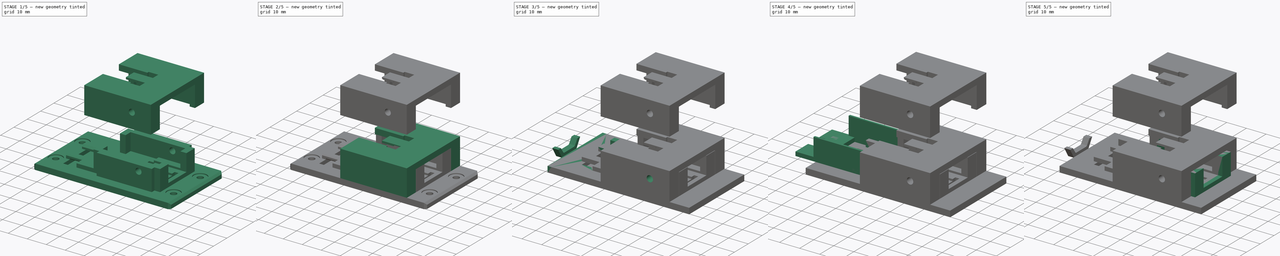
[diagram: build sequence overview — one tinted view per stage of 5, left to right]
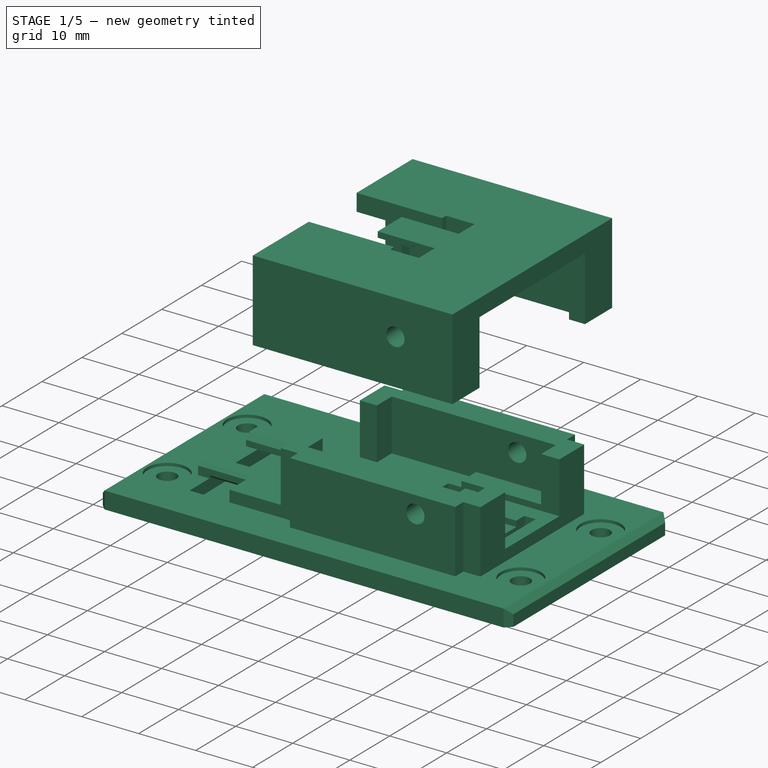
[diagram: stage 1 of 5 — iso view after this stage's code; geometry added in this stage tinted green]
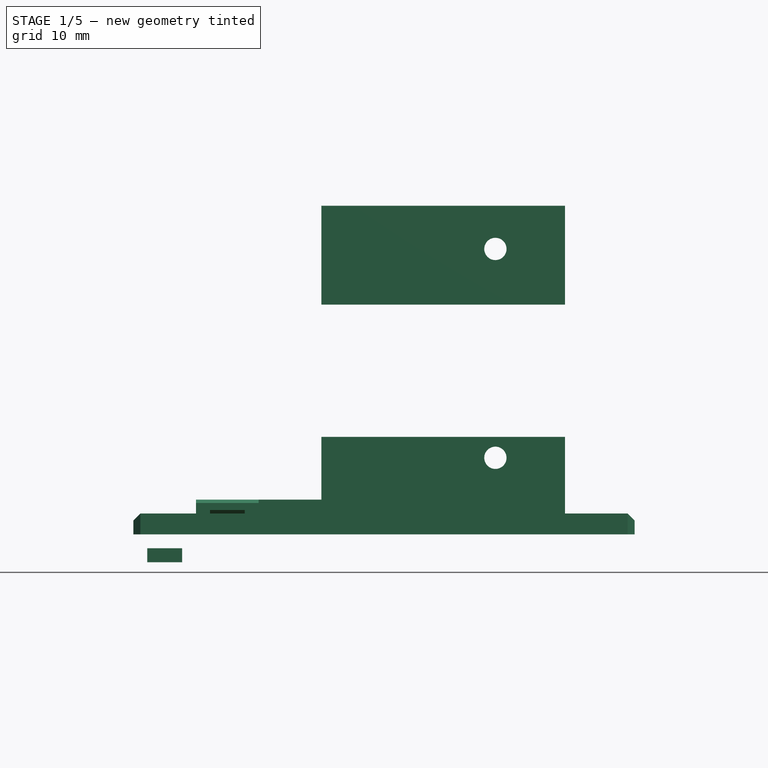
[diagram: stage 1 of 5 — front view after this stage's code; geometry added in this stage tinted green]
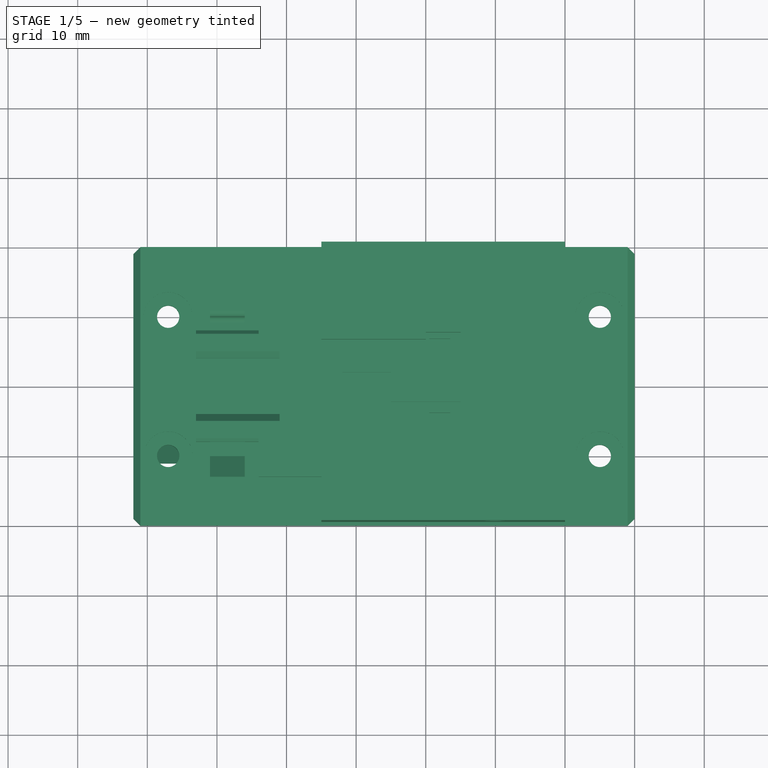
[diagram: stage 1 of 5 — top view after this stage's code; geometry added in this stage tinted green]
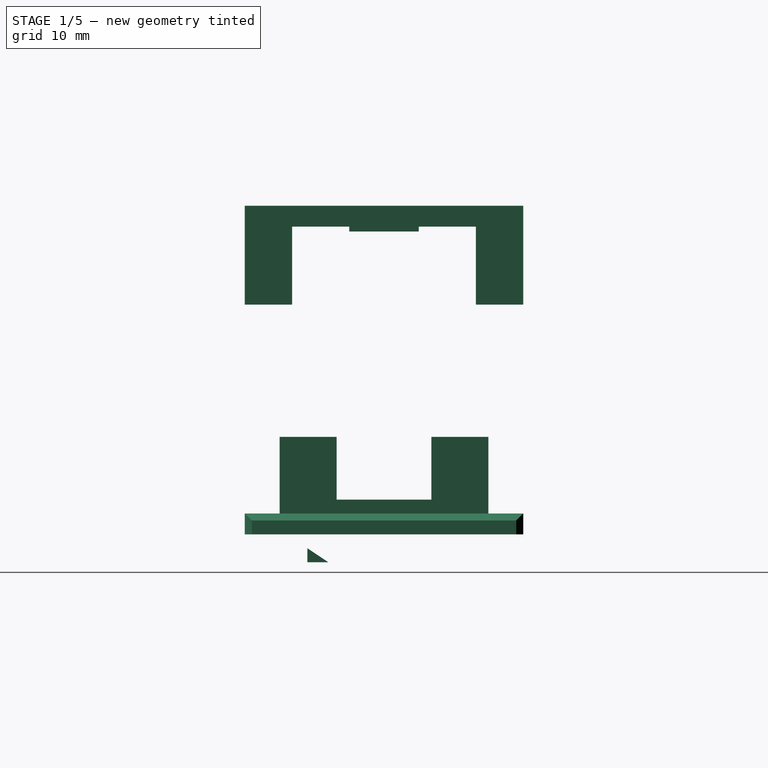
[diagram: stage 1 of 5 — right view after this stage's code; geometry added in this stage tinted green]
FCSTD DOCUMENT  (FreeCAD 0.18R14555 (Git shallow))
Label: dc-jack
License: All rights reserved
LicenseURL: http://en.wikipedia.org/wiki/All_rights_reserved
objects: Part::Box×43, Part::MultiFuse×12, Part::Cut×11, Part::Feature×10, Part::Chamfer×8, Part::Cylinder×6, Part::Fillet×4, Sketcher::SketchObject×1, PartDesign::Pad×1, PartDesign::Body×1
note: 98 computed .brp shape members not serialized (recipe doc carries the construction recipe); baked Part::Feature solids carry a one-line shape summary decoded from their .brp

FEATURE [Part::Cylinder] Cylinder004
  Angle = 360
  AttacherType = Attacher::AttachEngine3D
  Height = 40
  Placement = pos=(50,20,8) rot=(1,0,0;1.5708rad)
  Radius = 1.6
FEATURE [Part::Feature] Fusion004003001  label="Fusion004004"
  shape: bbox 72 x 40 x 14 mm, 74 faces (baked)
FEATURE [Part::MultiFuse] Fusion004003002
  Shapes = -> [Fusion004002,Fusion004001]
FEATURE [Part::Cut] Cut004
  Base = -> Fusion004003001
  Tool = -> Fusion004003002
FEATURE [Part::Chamfer] Chamfer
  Base = -> Cut004
  Edges = 2 edges r=1: [Edge77,Edge86]
FEATURE [Part::Chamfer] Chamfer001
  Base = -> Chamfer
  Edges = 2 edges r=0.5: [Edge50,Edge94]
FEATURE [Part::Chamfer] Chamfer002
  Base = -> Chamfer001
  Edges = 2 edges r=0.5: [Edge6,Edge74]
FEATURE [Part::Cut] Cut005
  Base = -> Chamfer002
  Tool = -> Cylinder004
FEATURE [Part::Feature] Cut008001  label="Cut009"
  shape: bbox 35 x 40 x 14.2 mm, 34 faces (baked)
FEATURE [Part::Box] Box041  label="Cube041"
  AttacherType = Attacher::AttachEngine3D
  Height = 2.5
  Length = 6
  Placement = pos=(45,-5,10.5) rot=(0,0,1;0rad)
  Width = 10
FEATURE [Part::MultiFuse] Fusion004003007
  Placement = pos=(0,0,30) rot=(0,0,1;0rad)
  Shapes = -> [Box041,Cut008001]
FEATURE [Part::Feature] Chamfer003001  label="Chamfer004"
  shape: bbox 35 x 40 x 14.2 mm, 40 faces (baked)
FEATURE [Part::Chamfer] Chamfer003002
  Base = -> Chamfer003001
  Edges = 11 edges r=1: [Edge12,Edge13,Edge14,Edge15,Edge16,Edge17,Edge18,Edge69,Edge71,Edge77,Edge79]
FEATURE [Part::Chamfer] Chamfer003003
  Base = -> Cut005
  Edges = 4 edges r=1: [Edge123,Edge124,Edge127,Edge128]
FEATURE [Part::Chamfer] Chamfer003004
  Base = -> Chamfer003003
  Edges = 1 edges r=1: [Edge8]
FEATURE [Part::Chamfer] Chamfer003005
  Base = -> Chamfer003004
  Edges = 1 edges r=1: [Edge6]
FEATURE [Sketcher::SketchObject] Sketch
  MapMode = 5
  Placement = pos=(0,0,0) rot=(0.57735,0.57735,0.57735;2.0944rad)
  Support = -> [YZ_Plane]
  sketch-geometry (3):
    g0: LineSegment StartX=-11 StartY=-5 StartZ=0 EndX=-8 EndY=-7 EndZ=0
    g1: LineSegment StartX=-8 StartY=-7 StartZ=0 EndX=-11 EndY=-7 EndZ=0
    g2: LineSegment StartX=-11 StartY=-7 StartZ=0 EndX=-11 EndY=-5 EndZ=0
  constraints (5):
    c: Coincident(g0,g1)
    c: Horizontal(g1)
    c: Coincident(g1,g2)
    c: PointOnObject(g2,g0)
    c: Vertical(g2)
FEATURE [PartDesign::Pad] Pad
  Length = 5
  Length2 = 100
  Placement = pos=(0,0,0) rot=(0.57735,0.57735,0.57735;2.0944rad)
  Profile = -> Sketch
  Type = 0
FEATURE [PartDesign::Body] Body
  Group = -> [Sketch,Pad]
  Origin = -> Origin
  Tip = -> Pad
FEATURE [Part::Feature] Body002
  Placement = pos=(9,0,5) rot=(0,0,1;0rad)
  shape: bbox 5 x 3 x 2 mm, 5 faces (baked)
FEATURE [Part::Box] Box042  label="Cube042"
  AttacherType = Attacher::AttachEngine3D
  Height = 2
  Length = 5
  Placement = pos=(9,-11,-2) rot=(0,0,1;0rad)
  Width = 6
FEATURE [Part::Cut] Cut008002
  Base = -> Box042
  Placement = pos=(0,-2,0) rot=(0,0,1;0rad)
  Tool = -> Body002
FEATURE [Part::Cut] Cut008003
  Base = -> Chamfer003005
  Tool = -> Cut008002
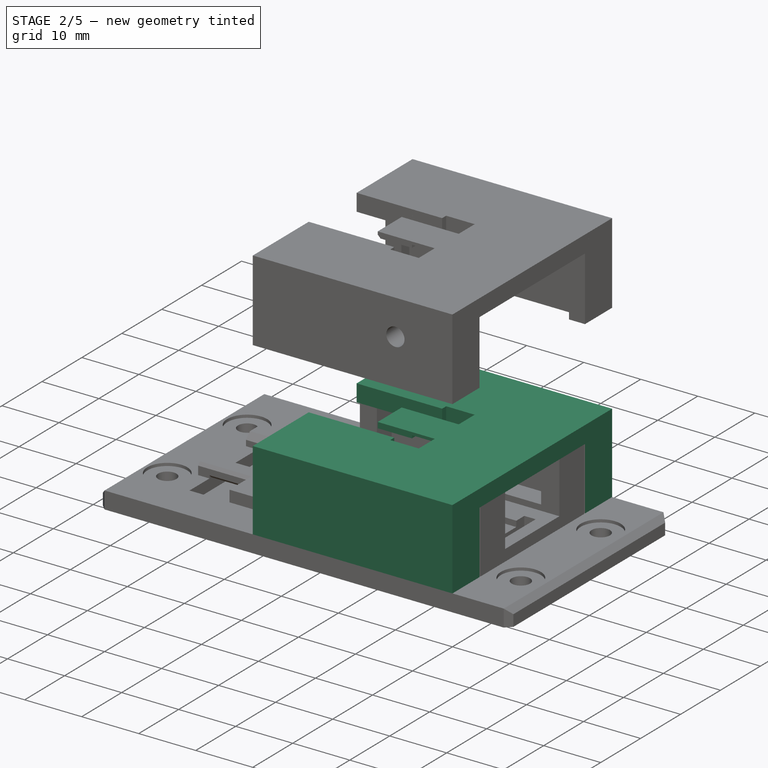
[diagram: stage 2 of 5 — iso view after this stage's code; geometry added in this stage tinted green]
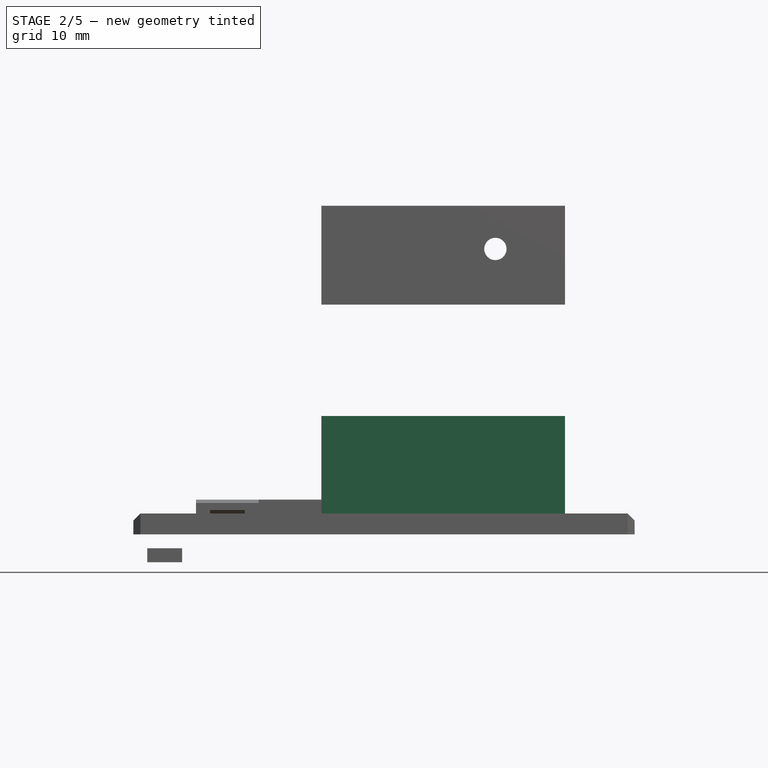
[diagram: stage 2 of 5 — front view after this stage's code; geometry added in this stage tinted green]
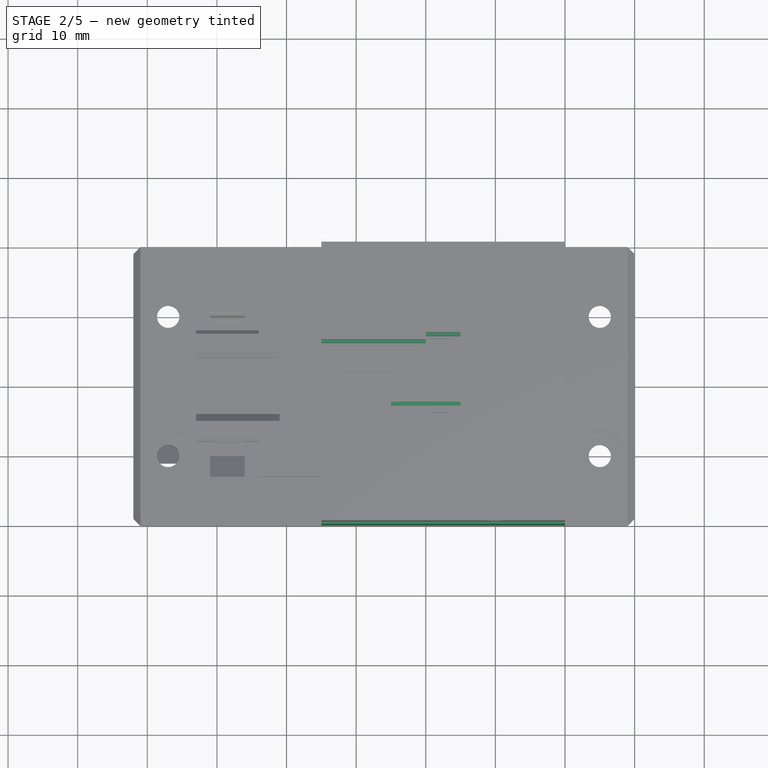
[diagram: stage 2 of 5 — top view after this stage's code; geometry added in this stage tinted green]
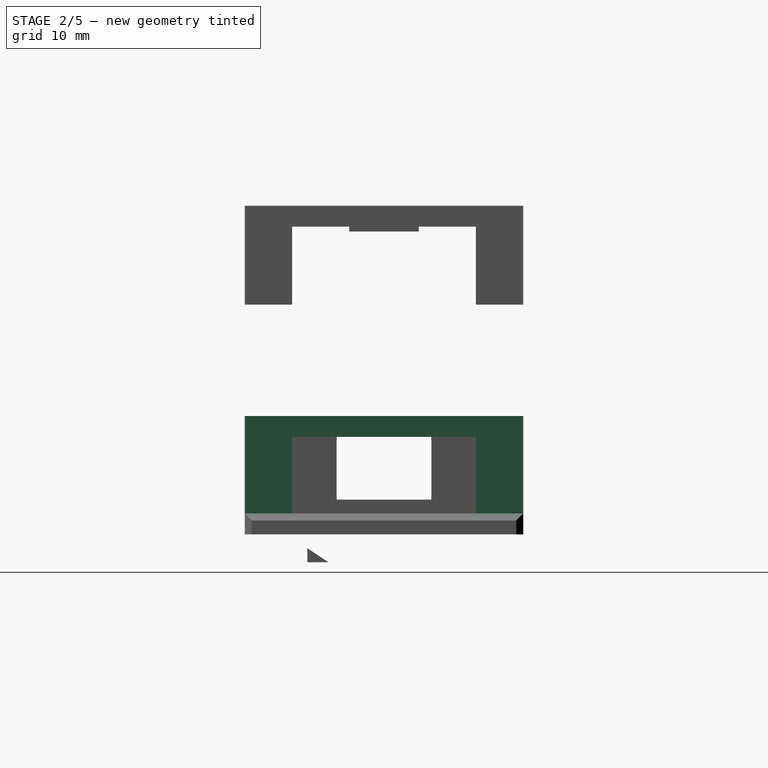
[diagram: stage 2 of 5 — right view after this stage's code; geometry added in this stage tinted green]
FEATURE [Part::Box] Box029  label="Cube029"
  AttacherType = Attacher::AttachEngine3D
  Height = 12
  Length = 2.8
  Placement = pos=(25,-20,0) rot=(0,0,1;0rad)
  Width = 6.8
FEATURE [Part::Box] Box030  label="Cube030"
  AttacherType = Attacher::AttachEngine3D
  Height = 12
  Length = 2.8
  Placement = pos=(25,13.2,0) rot=(0,0,1;0rad)
  Width = 6.8
FEATURE [Part::Box] Box031  label="Cube031"
  AttacherType = Attacher::AttachEngine3D
  Height = 12
  Length = 2.8
  Placement = pos=(57.2,-20,0) rot=(0,0,1;0rad)
  Width = 6.8
FEATURE [Part::Box] Box032  label="Cube032"
  AttacherType = Attacher::AttachEngine3D
  Height = 12
  Length = 2.8
  Placement = pos=(57.2,13.2,0) rot=(0,0,1;0rad)
  Width = 6.8
FEATURE [Part::Box] Box033  label="Cube033"
  AttacherType = Attacher::AttachEngine3D
  Height = 12
  Length = 31
  Placement = pos=(27,-20,0) rot=(0,0,1;0rad)
  Width = 4.8
FEATURE [Part::Box] Box034  label="Cube034"
  AttacherType = Attacher::AttachEngine3D
  Height = 12
  Length = 31
  Placement = pos=(27,15.2,0) rot=(0,0,1;0rad)
  Width = 4.8
FEATURE [Part::Box] Box035  label="Cube035"
  AttacherType = Attacher::AttachEngine3D
  Height = 3
  Length = 15
  Placement = pos=(45,-20,11) rot=(0,0,1;0rad)
  Width = 40
FEATURE [Part::Box] Box036  label="Cube036"
  AttacherType = Attacher::AttachEngine3D
  Height = 3
  Length = 20
  Placement = pos=(25,-20,11) rot=(0,0,1;0rad)
  Width = 14
FEATURE [Part::Box] Box037  label="Cube037"
  AttacherType = Attacher::AttachEngine3D
  Height = 3
  Length = 20
  Placement = pos=(25,6,11) rot=(0,0,1;0rad)
  Width = 14
FEATURE [Part::Box] Box038  label="Cube038"
  AttacherType = Attacher::AttachEngine3D
  Height = 3
  Length = 5
  Placement = pos=(40,-7,11) rot=(0,0,1;0rad)
  Width = 14
FEATURE [Part::MultiFuse] Fusion004003003
  Shapes = -> [Box036,Box035,Box037]
FEATURE [Part::Cut] Cut006
  Base = -> Fusion004003003
  Tool = -> Box038
FEATURE [Part::Box] Box039  label="Cube039"
  AttacherType = Attacher::AttachEngine3D
  Height = 1
  Length = 10
  Placement = pos=(35,-3,13) rot=(0,0,1;0rad)
  Width = 6
FEATURE [Part::Box] Box040  label="Cube040"
  AttacherType = Attacher::AttachEngine3D
  Height = 0.5
  Length = 4
  Placement = pos=(41,-3,13) rot=(0,0,1;0rad)
  Width = 6
FEATURE [Part::Cut] Cut007
  Base = -> Box039
  Tool = -> Box040
FEATURE [Part::MultiFuse] Fusion004003005
  Shapes = -> [Box029,Box033,Box032,Box031,Box034,Box030]
FEATURE [Part::Chamfer] Chamfer003
  Base = -> Fusion004003007
  Edges = 2 edges r=0.5: [Edge41,Edge111]
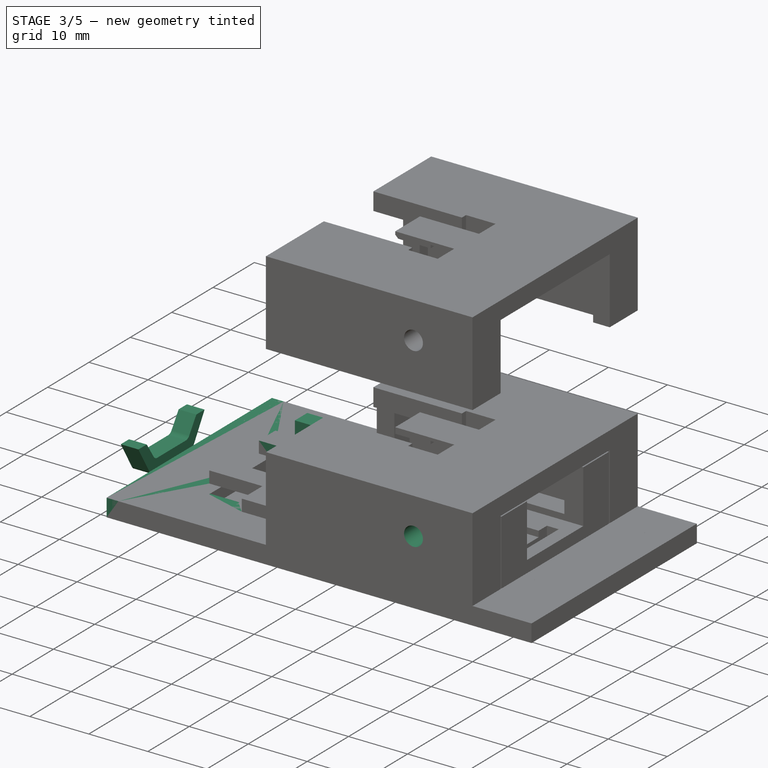
[diagram: stage 3 of 5 — iso view after this stage's code; geometry added in this stage tinted green]
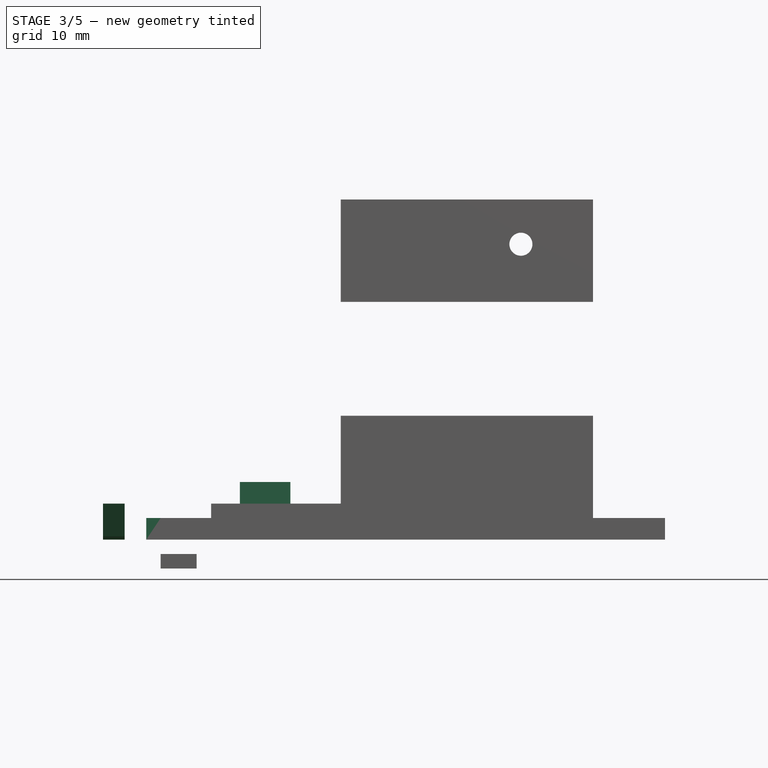
[diagram: stage 3 of 5 — front view after this stage's code; geometry added in this stage tinted green]
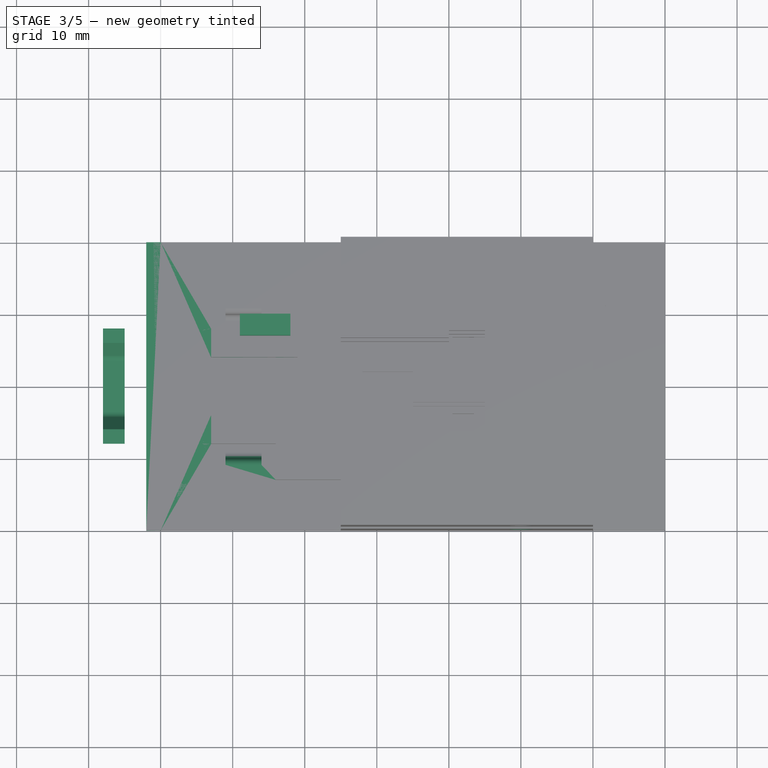
[diagram: stage 3 of 5 — top view after this stage's code; geometry added in this stage tinted green]
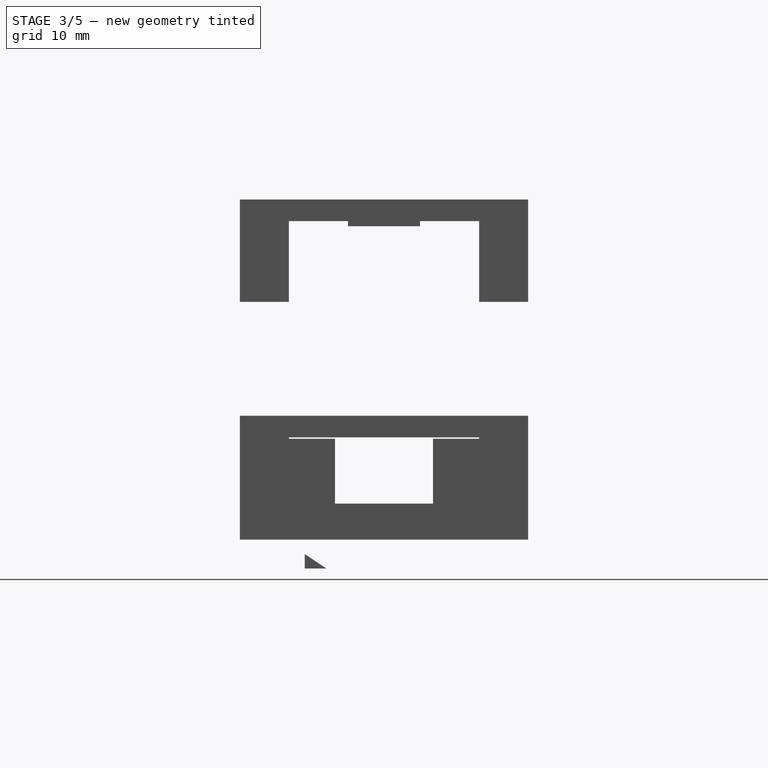
[diagram: stage 3 of 5 — right view after this stage's code; geometry added in this stage tinted green]
FEATURE [Part::Box] Box  label="Cube"
  AttacherType = Attacher::AttachEngine3D
  Height = 3
  Length = 70
  Placement = pos=(0,-20,-3) rot=(0,0,1;0rad)
  Width = 40
FEATURE [Part::Feature] Fusion004001  label="screw-hole-copy"
  Placement = pos=(65,0,0) rot=(0,0,1;0rad)
  shape: bbox 7 x 27 x 3 mm, 12 faces, 2 solids (baked)
FEATURE [Part::Box] Box021  label="Cube021"
  AttacherType = Attacher::AttachEngine3D
  Height = 5
  Length = 7
  Placement = pos=(11,7,0) rot=(0,0,1;0rad)
  Width = 3
FEATURE [Part::Box] Box022  label="Cube022"
  AttacherType = Attacher::AttachEngine3D
  Height = 2
  Length = 3
  Placement = pos=(13,7,0) rot=(0,0,1;0rad)
  Width = 3
FEATURE [Part::Feature] Fusion001001  label="bottom001"
  Placement = pos=(-2,0,0) rot=(0,0,1;0rad)
  shape: bbox 44 x 26 x 11 mm, 42 faces (baked)
FEATURE [Part::Feature] Fillet001001  label="Fillet002"
  Placement = pos=(-1,0,0) rot=(0,0,1;0rad)
  shape: bbox 7 x 3 x 5 mm, 12 faces (baked)
FEATURE [Part::Feature] Fillet001002  label="Fillet003"
  Placement = pos=(26,-1.2e-14,0) rot=(0,0,1;3.14159rad)
  shape: bbox 7 x 3 x 5 mm, 12 faces (baked)
FEATURE [Part::Box] Box023  label="Cube023"
  AttacherType = Attacher::AttachEngine3D
  Height = 11
  Length = 29
  Placement = pos=(28,-15,0) rot=(0,0,1;0rad)
  Width = 2
FEATURE [Part::Box] Box024  label="Cube024"
  AttacherType = Attacher::AttachEngine3D
  Height = 11
  Length = 29
  Placement = pos=(28,13,0) rot=(0,0,1;0rad)
  Width = 2
FEATURE [Part::Feature] Body001
  Placement = pos=(-8,0,0) rot=(0,0,1;0rad)
  shape: bbox 3 x 16 x 5 mm, 10 faces (baked)
FEATURE [Part::Fillet] Fillet001003
  Base = -> Body001
  Edges = 4 edges r=1: [Edge2,Edge5,Edge14,Edge17]
FEATURE [Part::Box] Box025  label="Cube025"
  AttacherType = Attacher::AttachEngine3D
  Height = 2
  Length = 9
  Placement = pos=(7,4,0) rot=(0,0,1;0rad)
  Width = 4
FEATURE [Part::Box] Box026  label="Cube026"
  AttacherType = Attacher::AttachEngine3D
  Height = 2
  Length = 9
  Placement = pos=(7,-8,0) rot=(0,0,1;0rad)
  Width = 4
FEATURE [Part::Box] Box027  label="Cube027"
  AttacherType = Attacher::AttachEngine3D
  Height = 2
  Length = 5
  Placement = pos=(9,-10,-2) rot=(0,0,1;0rad)
  Width = 20
FEATURE [Part::Cut] Cut003
  Base = -> Box
  Tool = -> Box027
FEATURE [Part::Fillet] Fillet001004
  Base = -> Cut003
  Edges = 4 edges r=0.9: [Edge11,Edge13,Edge20,Edge24]
FEATURE [Part::Feature] Fusion004002  label="screw-hole-copy001"
  Placement = pos=(3,0,0) rot=(0,0,1;0rad)
  shape: bbox 7 x 27 x 3 mm, 12 faces, 2 solids (baked)
FEATURE [Part::Box] Box028  label="Cube028"
  AttacherType = Attacher::AttachEngine3D
  Height = 3
  Length = 2
  Placement = pos=(-2,-20,-3) rot=(0,0,1;0rad)
  Width = 40
FEATURE [Part::MultiFuse] Fusion004003
  Shapes = -> [Box023,Box024,Box025,Box026,Fillet001004,Box028,Fusion001001]
FEATURE [Part::Cylinder] Cylinder005
  Angle = 360
  AttacherType = Attacher::AttachEngine3D
  Height = 40
  Placement = pos=(50,20,8) rot=(1,0,0;1.5708rad)
  Radius = 1.6
FEATURE [Part::MultiFuse] Fusion004003004
  Placement = pos=(0,0,0.2) rot=(0,0,1;0rad)
  Shapes = -> [Cut006,Cut007]
FEATURE [Part::MultiFuse] Fusion004003006
  Shapes = -> [Fusion004003004,Fusion004003005]
FEATURE [Part::Cut] Cut008
  Base = -> Fusion004003006
  Tool = -> Cylinder005
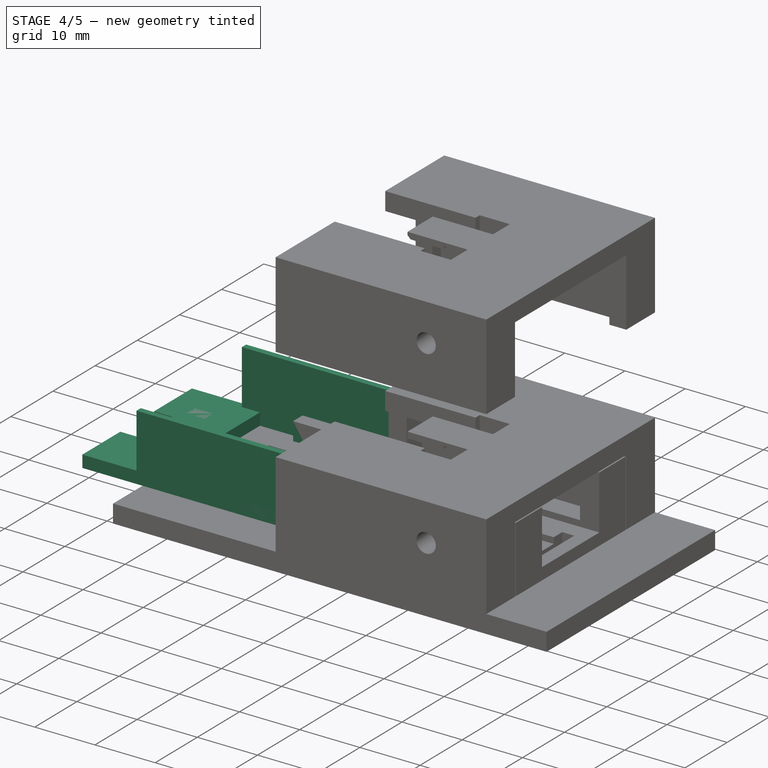
[diagram: stage 4 of 5 — iso view after this stage's code; geometry added in this stage tinted green]
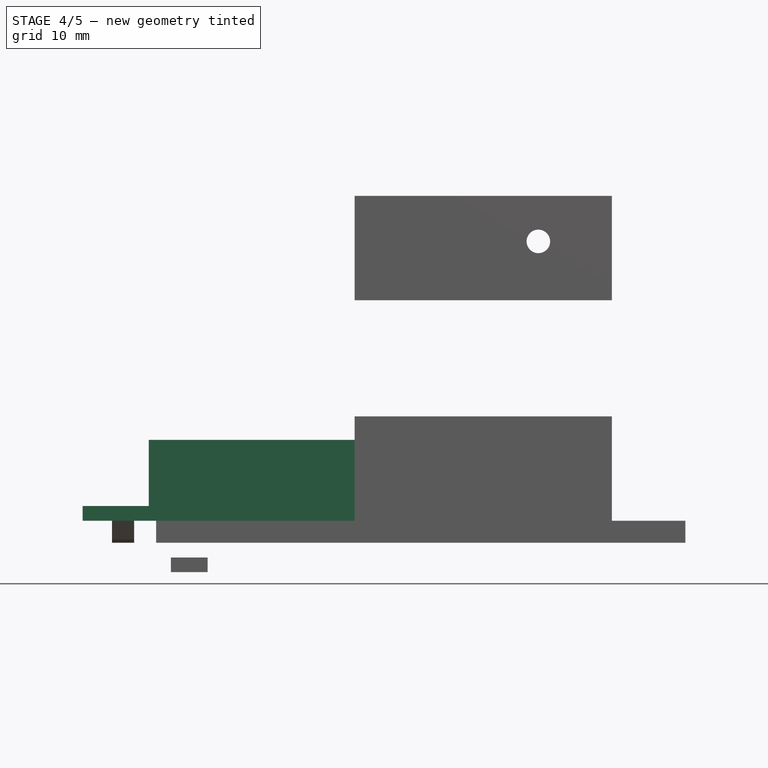
[diagram: stage 4 of 5 — front view after this stage's code; geometry added in this stage tinted green]
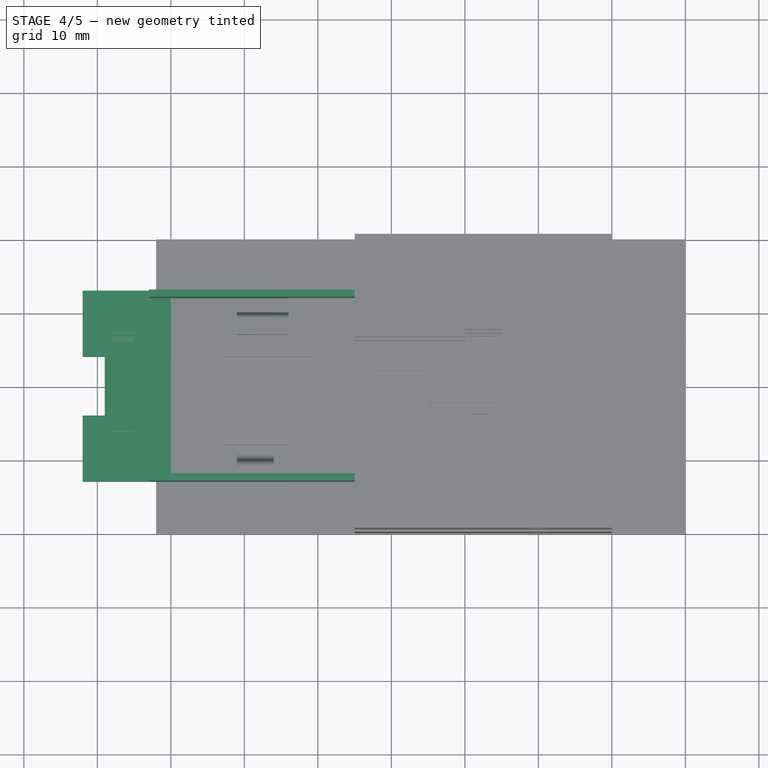
[diagram: stage 4 of 5 — top view after this stage's code; geometry added in this stage tinted green]
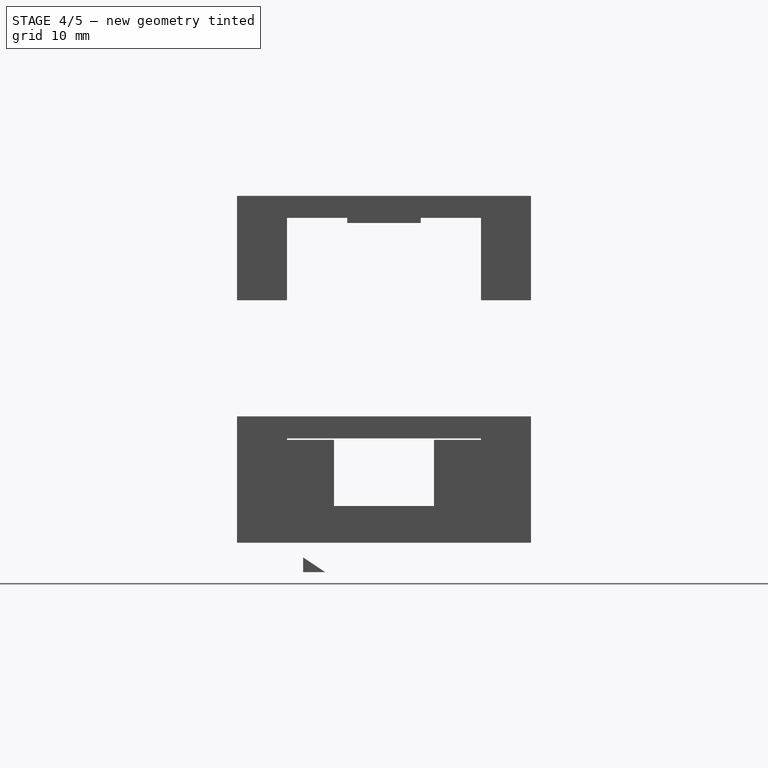
[diagram: stage 4 of 5 — right view after this stage's code; geometry added in this stage tinted green]
FEATURE [Part::Box] Box013  label="Cube013"
  AttacherType = Attacher::AttachEngine3D
  Height = 2
  Length = 12
  Placement = pos=(-12,-12,0) rot=(0,0,1;0rad)
  Width = 24
FEATURE [Part::Box] Box016  label="Cube016"
  AttacherType = Attacher::AttachEngine3D
  Height = 2
  Length = 3
  Placement = pos=(-12,-4,0) rot=(0,0,1;0rad)
  Width = 8
FEATURE [Part::Cut] Cut001
  Base = -> Box013
  Tool = -> Box016
FEATURE [Part::Box] Box017  label="Cube017"
  AttacherType = Attacher::AttachEngine3D
  Height = 11
  Length = 35
  Placement = pos=(-3,-13,0) rot=(0,0,1;0rad)
  Width = 1
FEATURE [Part::Box] Box018  label="Cube018"
  AttacherType = Attacher::AttachEngine3D
  Height = 11
  Length = 35
  Placement = pos=(-3,12,0) rot=(0,0,1;0rad)
  Width = 1
FEATURE [Part::Box] Box019  label="Cube019"
  AttacherType = Attacher::AttachEngine3D
  Height = 2
  Length = 9
  Placement = pos=(-12,12,0) rot=(0,0,1;0rad)
  Width = 1
FEATURE [Part::Box] Box020  label="Cube020"
  AttacherType = Attacher::AttachEngine3D
  Height = 2
  Length = 9
  Placement = pos=(-12,-13,0) rot=(0,0,1;0rad)
  Width = 1
FEATURE [Part::Cylinder] Cylinder
  Angle = 360
  AttacherType = Attacher::AttachEngine3D
  Height = 3
  Placement = pos=(0,10,-3) rot=(0,0,1;0rad)
  Radius = 1.6
FEATURE [Part::Cylinder] Cylinder001
  Angle = 360
  AttacherType = Attacher::AttachEngine3D
  Height = 3
  Placement = pos=(0,-10,-3) rot=(0,0,1;0rad)
  Radius = 1.6
FEATURE [Part::Cylinder] Cylinder002
  Angle = 360
  AttacherType = Attacher::AttachEngine3D
  Height = 0.5
  Placement = pos=(0,10,-0.5) rot=(0,0,1;0rad)
  Radius = 3.5
FEATURE [Part::Cylinder] Cylinder003
  Angle = 360
  AttacherType = Attacher::AttachEngine3D
  Height = 0.5
  Placement = pos=(0,-10,-0.5) rot=(0,0,1;0rad)
  Radius = 3.5
FEATURE [Part::MultiFuse] Fusion002
  Shapes = -> [Cylinder002,Cylinder]
FEATURE [Part::MultiFuse] Fusion003
  Shapes = -> [Cylinder003,Cylinder001]
FEATURE [Part::MultiFuse] Fusion004  label="screw-hole"
  Placement = pos=(5,0,0) rot=(0,0,1;0rad)
  Shapes = -> [Fusion003,Fusion002]
FEATURE [Part::Cut] Cut002
  Base = -> Box021
  Tool = -> Box022
FEATURE [Part::Fillet] Fillet
  Base = -> Cut002
  Edges = 1 edges r=1: [Edge16]
  Placement = pos=(-1,0,0) rot=(0,0,1;0rad)
FEATURE [Part::Fillet] Fillet001
  Base = -> Fillet
  Edges = 1 edges r=1: [Edge8]
  Placement = pos=(-1,0,0) rot=(0,0,1;0rad)
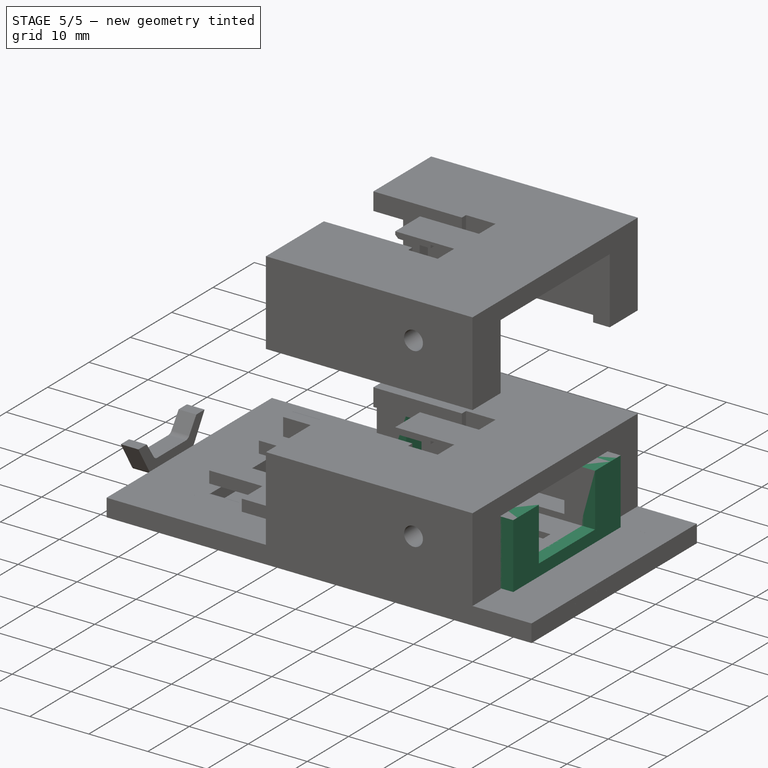
[diagram: stage 5 of 5 — iso view after this stage's code; geometry added in this stage tinted green]
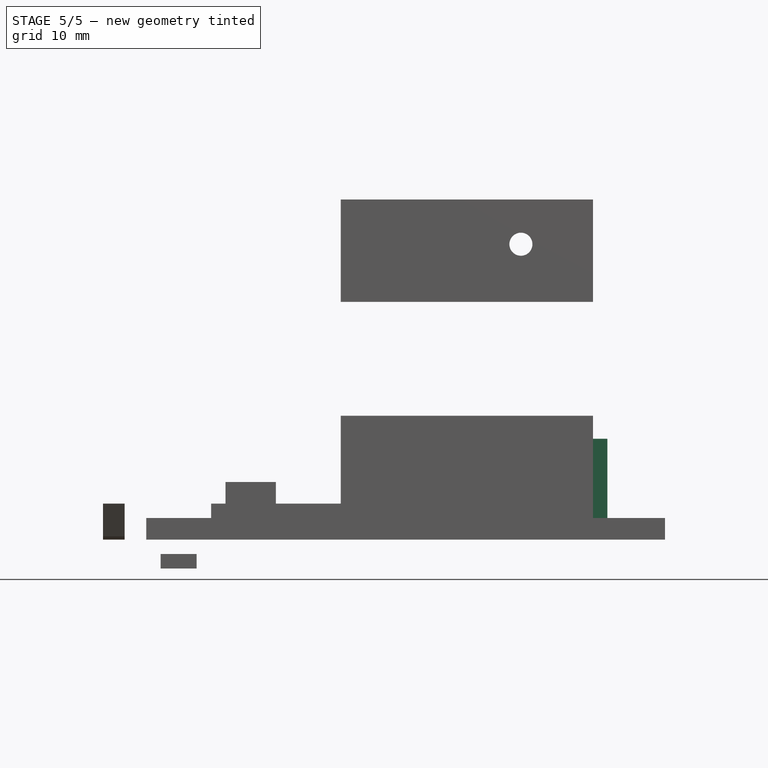
[diagram: stage 5 of 5 — front view after this stage's code; geometry added in this stage tinted green]
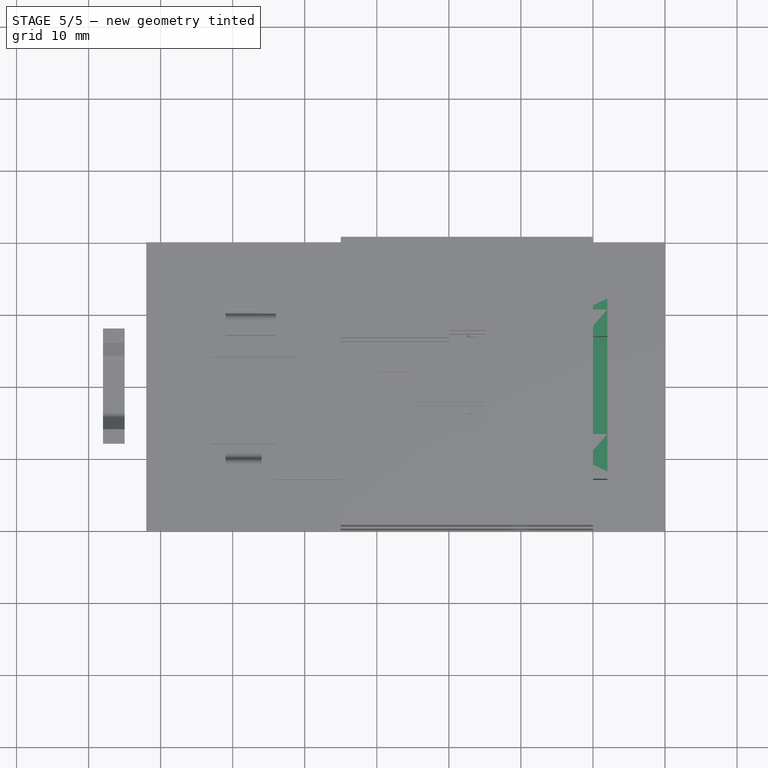
[diagram: stage 5 of 5 — top view after this stage's code; geometry added in this stage tinted green]
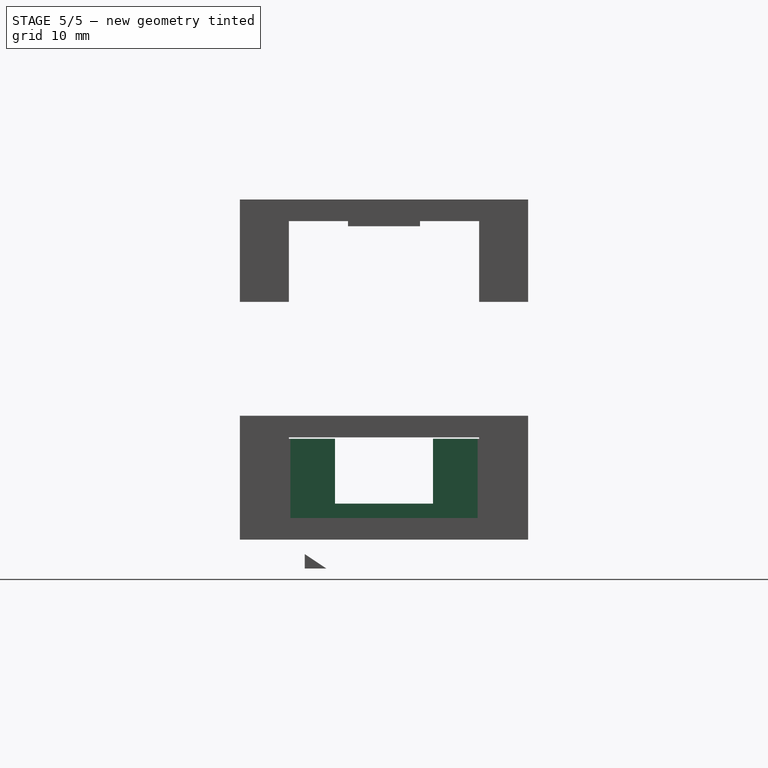
[diagram: stage 5 of 5 — right view after this stage's code; geometry added in this stage tinted green]
FEATURE [Part::Box] Box001  label="Cube001"
  AttacherType = Attacher::AttachEngine3D
  Height = 2
  Length = 32
  Placement = pos=(0,-12,0) rot=(0,0,1;0rad)
  Width = 24
FEATURE [Part::Box] Box002  label="Cube002"
  AttacherType = Attacher::AttachEngine3D
  Height = 9
  Length = 29.8
  Placement = pos=(0,-6.8,2) rot=(0,0,1;0rad)
  Width = 13.6
FEATURE [Part::Box] Box003  label="Cube003"
  AttacherType = Attacher::AttachEngine3D
  Height = 1
  Length = 29.8
  Placement = pos=(0,-2,1) rot=(0,0,1;0rad)
  Width = 4
FEATURE [Part::Box] Box004  label="Cube004"
  AttacherType = Attacher::AttachEngine3D
  Height = 2
  Length = 3
  Placement = pos=(12.5,3.8,0) rot=(0,0,1;0rad)
  Width = 3
FEATURE [Part::Box] Box005  label="Cube005"
  AttacherType = Attacher::AttachEngine3D
  Height = 2
  Length = 3
  Placement = pos=(12.5,-6.8,0) rot=(0,0,1;0rad)
  Width = 3
FEATURE [Part::Box] Box006  label="Cube006"
  AttacherType = Attacher::AttachEngine3D
  Height = 2
  Length = 2
  Placement = pos=(27.8,-4,0) rot=(0,0,1;0rad)
  Width = 8
FEATURE [Part::Box] Box007  label="Cube007"
  AttacherType = Attacher::AttachEngine3D
  Height = 1
  Length = 15
  Placement = pos=(14.8,6.8,2) rot=(0,0,1;0rad)
  Width = 3.7
FEATURE [Part::Box] Box008  label="Cube008"
  AttacherType = Attacher::AttachEngine3D
  Height = 1
  Length = 15
  Placement = pos=(14.8,-10.5,2) rot=(0,0,1;0rad)
  Width = 3.7
FEATURE [Part::Box] Box009  label="Cube009"
  AttacherType = Attacher::AttachEngine3D
  Height = 9
  Length = 3.2
  Placement = pos=(28.8,6.8,2) rot=(0,0,1;0rad)
  Width = 3.7
FEATURE [Part::Box] Box010  label="Cube010"
  AttacherType = Attacher::AttachEngine3D
  Height = 9
  Length = 3.2
  Placement = pos=(28.8,-10.5,2) rot=(0,0,1;0rad)
  Width = 3.7
FEATURE [Part::Box] Box011  label="Cube011"
  AttacherType = Attacher::AttachEngine3D
  Height = 9
  Length = 32
  Placement = pos=(0,10.5,2) rot=(0,0,1;0rad)
  Width = 1.5
FEATURE [Part::Box] Box012  label="Cube012"
  AttacherType = Attacher::AttachEngine3D
  Height = 9
  Length = 32
  Placement = pos=(0,-12,2) rot=(0,0,1;0rad)
  Width = 1.5
FEATURE [Part::MultiFuse] Fusion
  Shapes = -> [Box002,Box003,Box004,Box005,Box006]
FEATURE [Part::Cut] Cut
  Base = -> Box001
  Tool = -> Fusion
FEATURE [Part::Box] Box014  label="Cube014"
  AttacherType = Attacher::AttachEngine3D
  Height = 11
  Length = 3
  Placement = pos=(-3,6.8,0) rot=(0,0,1;0rad)
  Width = 5.2
FEATURE [Part::Box] Box015  label="Cube015"
  AttacherType = Attacher::AttachEngine3D
  Height = 11
  Length = 3
  Placement = pos=(-3,-12,0) rot=(0,0,1;0rad)
  Width = 5.2
FEATURE [Part::MultiFuse] Fusion001  label="bottom"
  Placement = pos=(30,0,0) rot=(0,0,1;0rad)
  Shapes = -> [Box007,Cut,Box015,Box008,Box009,Box010,Box011,Box012,Box017,Cut001,Box014,Box019,Box018,Box020]
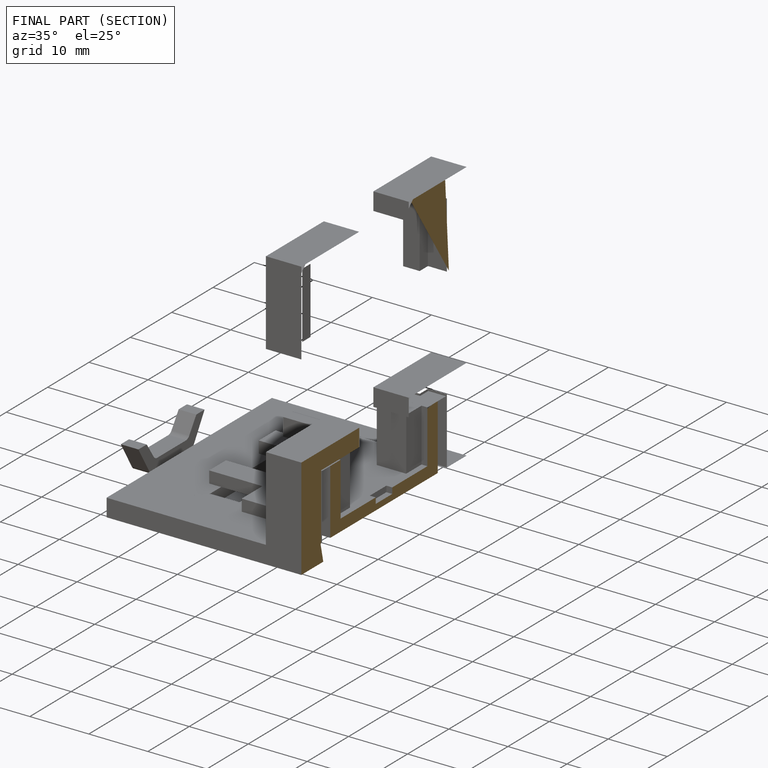
[diagram: finished part — half-section view (interior)]
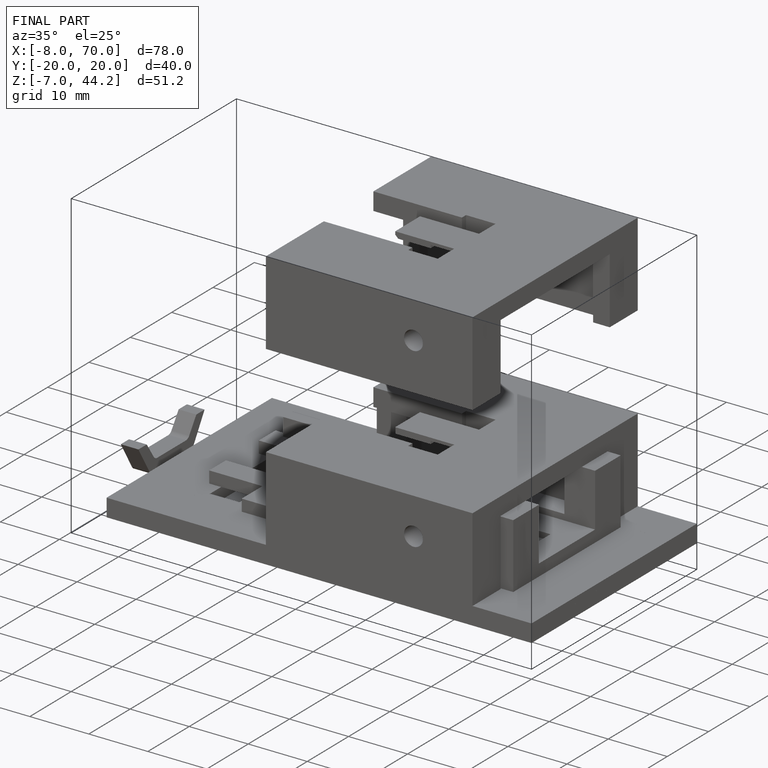
[diagram: finished part — iso view with bounding-box wireframe]
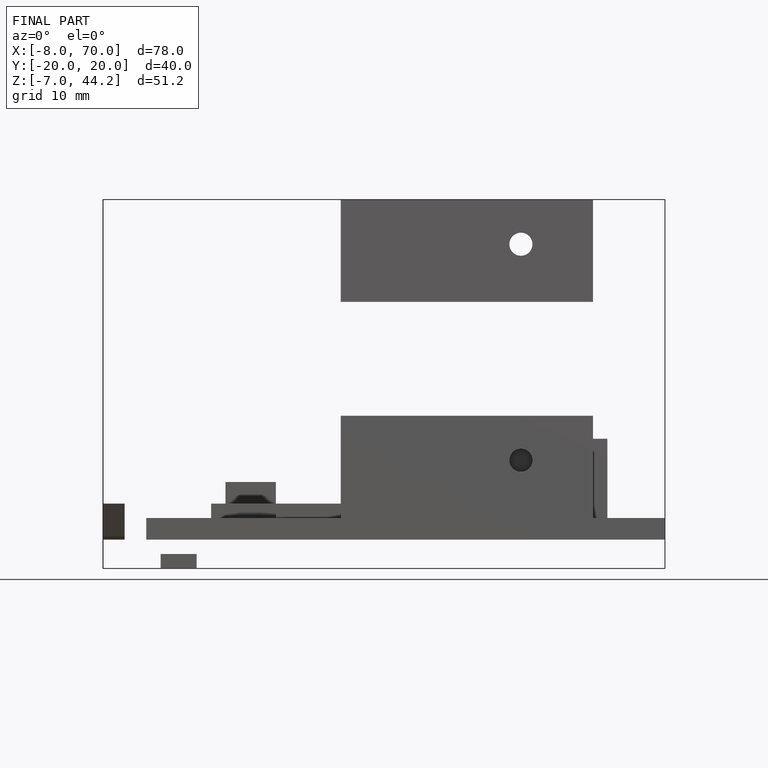
[diagram: finished part — front view with bounding-box wireframe]
